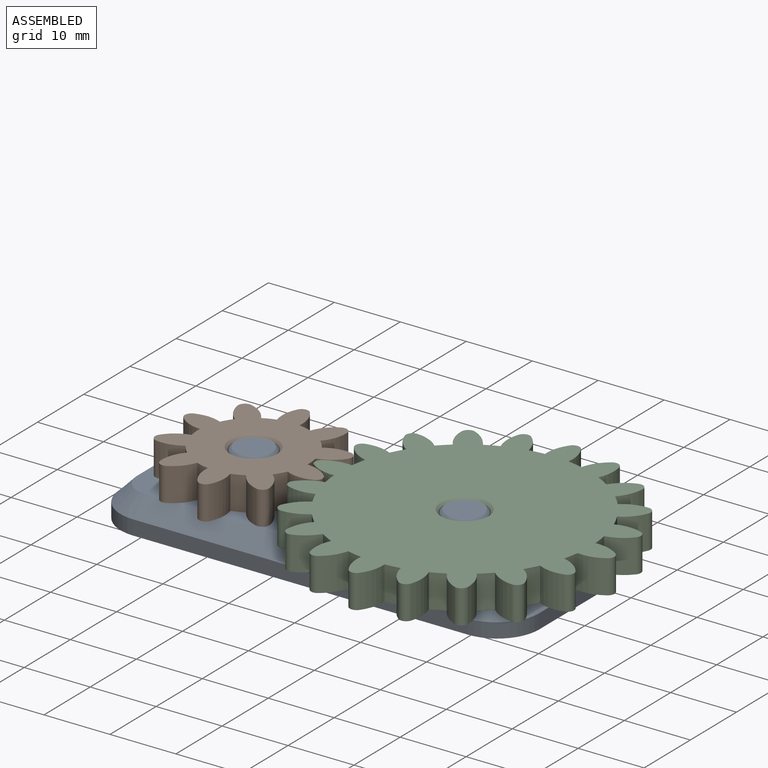
[diagram: assembled view]
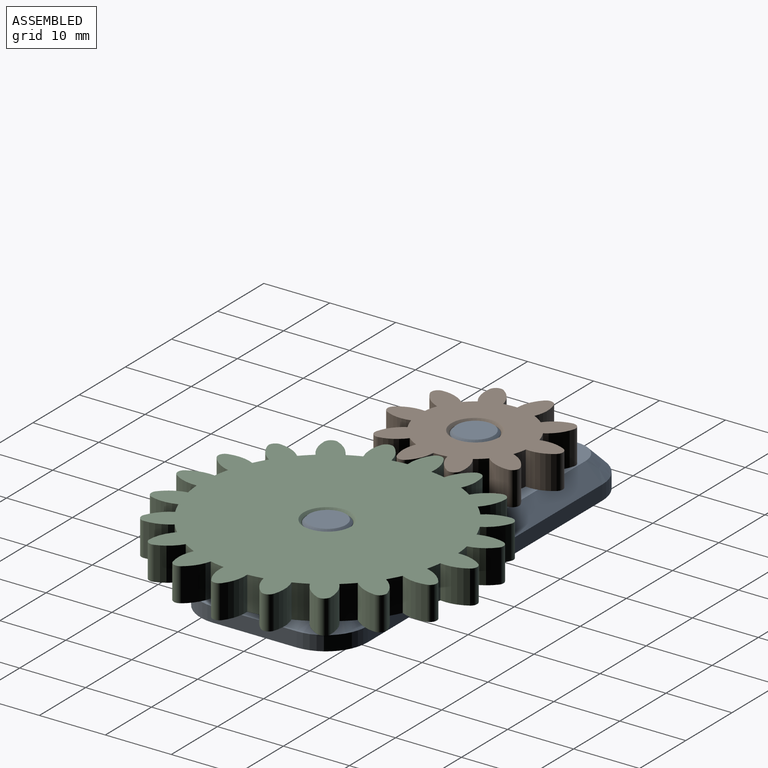
[diagram: assembled view, second angle]
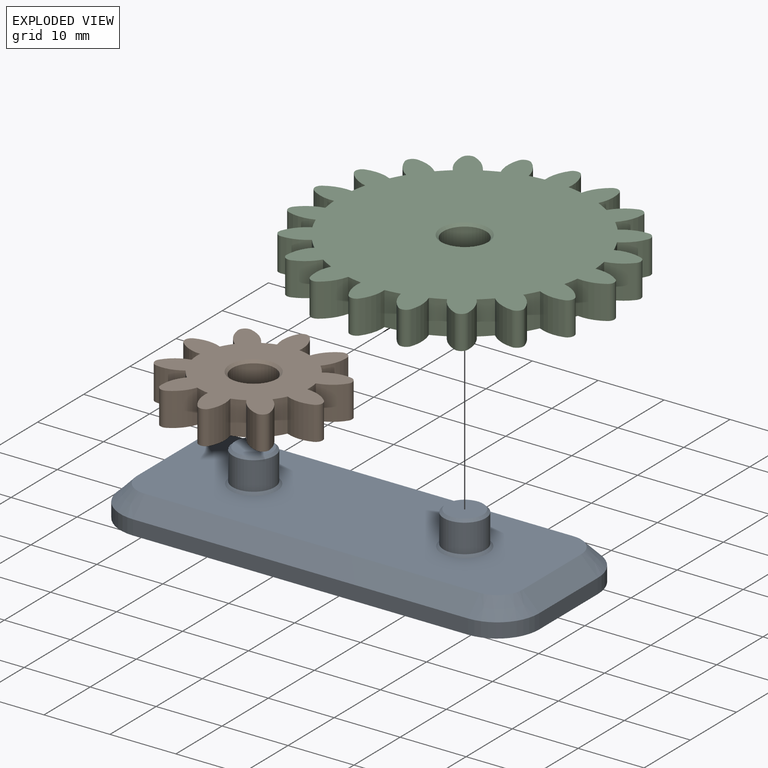
[diagram: exploded view]
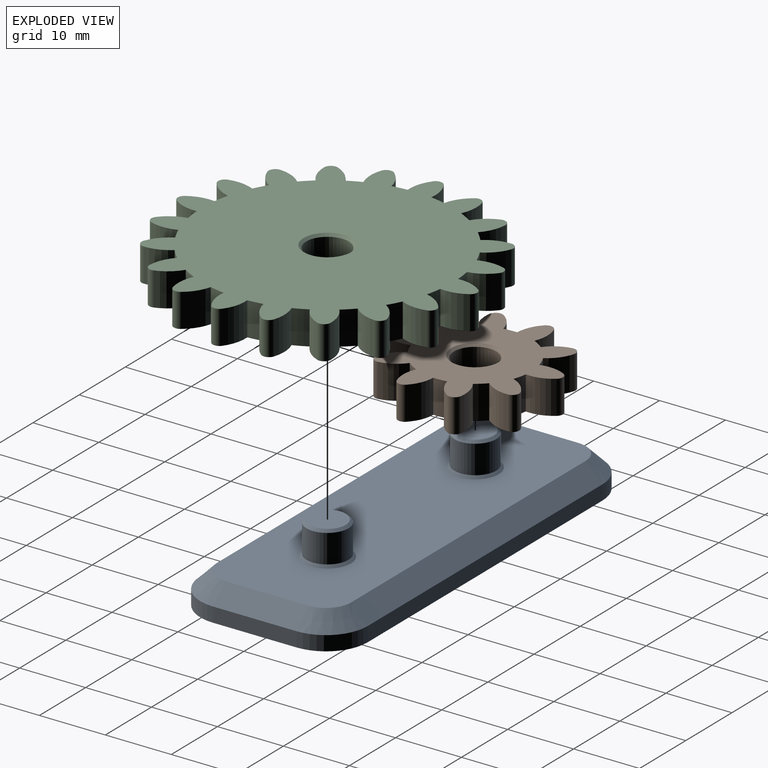
[diagram: exploded view, second angle]
ASSEMBLY  parts=3 mates=2
PART A: 43 faces, bbox 63.5x25.4x9.8 mm
  f0: plane 63.5x25.4mm, normal (0,0,-1), area 403.7mm2, adj f1,f2,f3,f4,f5,f6,f7,f8
  f1: plane 50.8x2.22mm, normal (0,1,0), area 112.9mm2, adj f0,f2,f8,f17
  f2: cylinder r=6.35mm len=6.35mm, axis (0,0,-1), area 22.2mm2, adj f0,f1,f3,f15
  f3: plane 12.7x2.22mm, normal (-1,0,0), area 28.2mm2, adj f0,f2,f4,f13
  f4: cylinder r=6.35mm len=6.35mm, axis (0,0,-1), area 22.2mm2, adj f0,f3,f5,f11
  f5: plane 50.8x2.22mm, normal (0,-1,0), area 112.9mm2, adj f0,f4,f6,f10
  f6: cylinder r=6.35mm len=6.35mm, axis (0,0,-1), area 22.2mm2, adj f0,f5,f7,f12
  f7: plane 12.7x2.22mm, normal (1,0,0), area 28.2mm2, adj f0,f6,f8,f14
  f8: cylinder r=6.35mm len=6.35mm, axis (0,0,-1), area 22.2mm2, adj f0,f1,f7,f16
  f9: plane 58.42x20.32mm, normal (0,0,1), area 1095.2mm2, adj f10,f11,f12,f13,f14,f15,f16,f17
  f10: plane 50.8x2.54mm, normal (0,-0.71,0.71), area 182.5mm2, adj f5,f9,f11,f12
  f11: cone r=3.81mm half-angle=45deg, axis (0,0,-1), area 28.7mm2, adj f4,f9,f10,f13
  f12: cone r=3.81mm half-angle=45deg, axis (0,0,-1), area 28.7mm2, adj f6,f9,f10,f14
  f13: plane 12.7x2.54mm, normal (-0.71,0,0.71), area 45.6mm2, adj f3,f9,f11,f15
  f14: plane 12.7x2.54mm, normal (0.71,0,0.71), area 45.6mm2, adj f7,f9,f12,f16
  f15: cone r=3.81mm half-angle=45deg, axis (0,0,-1), area 28.7mm2, adj f2,f9,f13,f17
  f16: cone r=3.81mm half-angle=45deg, axis (0,0,-1), area 28.7mm2, adj f8,f9,f14,f17
  f17: plane 50.8x2.54mm, normal (0,0.71,0.71), area 182.5mm2, adj f1,f9,f15,f16
  f18: plane 50.8x1.17mm, normal (0,-1,0), area 59.5mm2, adj f0,f19,f25,f34
  f19: cylinder r=3.81mm len=3.81mm, axis (0,0,-1), area 7mm2, adj f0,f18,f20,f32
  f20: plane 12.7x1.17mm, normal (1,0,0), area 14.9mm2, adj f0,f19,f21,f30
  f21: cylinder r=3.81mm len=3.81mm, axis (0,0,-1), area 7mm2, adj f0,f20,f22,f28
  f22: plane 50.8x1.17mm, normal (0,1,0), area 59.5mm2, adj f0,f21,f23,f27
  f23: cylinder r=3.81mm len=3.81mm, axis (0,0,-1), area 7mm2, adj f0,f22,f24,f29
  f24: plane 12.7x1.17mm, normal (-1,0,0), area 14.9mm2, adj f0,f23,f25,f31
  f25: cylinder r=3.81mm len=3.81mm, axis (0,0,-1), area 7mm2, adj f0,f18,f24,f33
  f26: plane 56.32x18.22mm, normal (0,0,-1), area 1019.3mm2, adj f27,f28,f29,f30,f31,f32,f33,f34
  f27: plane 50.8x1.05mm, normal (0,0.71,-0.71), area 75.6mm2, adj f22,f26,f28,f29
  f28: cone r=2.01mm half-angle=45deg, axis (0,0,-1), area 7.7mm2, adj f21,f26,f27,f30
  f29: cone r=2.01mm half-angle=45deg, axis (0,0,-1), area 7.7mm2, adj f23,f26,f27,f31
  f30: plane 12.7x1.05mm, normal (0.71,0,-0.71), area 18.9mm2, adj f20,f26,f28,f32
  f31: plane 12.7x1.05mm, normal (-0.71,0,-0.71), area 18.9mm2, adj f24,f26,f29,f33
  f32: cone r=2.01mm half-angle=45deg, axis (0,0,-1), area 7.7mm2, adj f19,f26,f30,f34
  f33: cone r=2.01mm half-angle=45deg, axis (0,0,-1), area 7.7mm2, adj f25,f26,f31,f34
  f34: plane 50.8x1.05mm, normal (0,-0.71,-0.71), area 75.6mm2, adj f18,f26,f32,f33
  f35: cylinder r=3.17mm len=6.35mm, axis (0,0,-1), area 86.1mm2, adj f39,f41
  f36: plane 5.59x5.59mm, normal (0,0,1), area 24.5mm2, adj f39
  f37: cylinder r=3.17mm len=6.35mm, axis (0,0,-1), area 86.1mm2, adj f40,f42
  f38: plane 5.59x5.59mm, normal (0,0,1), area 24.5mm2, adj f42
  f39: cone r=2.79mm half-angle=45deg, axis (0,0,-1), area 10.1mm2, adj f35,f36
  f40: cone r=3.17mm half-angle=45deg, axis (0,0,-1), area 11.4mm2, adj f9,f37
  f41: cone r=3.17mm half-angle=45deg, axis (0,0,-1), area 11.4mm2, adj f9,f35
  f42: cone r=2.79mm half-angle=45deg, axis (0,0,-1), area 10.1mm2, adj f37,f38
PART B: 45 faces, bbox 25.1x25.1x5.1 mm
  f0: cylinder r=8.47mm len=5.08mm, axis (0,0,-1), area 10.4mm2, adj f1,f6,f40,f41
  f1: cylinder r=5.29mm len=5.08mm, axis (0,0,-1), area 21.1mm2, adj f0,f3,f40,f41
  f2: cylinder r=5.29mm len=5.08mm, axis (0,0,-1), area 20.6mm2, adj f3,f36,f40,f41
  f3: cylinder r=1.04mm len=5.08mm, axis (0,0,-1), area 10.5mm2, adj f1,f2,f40,f41
  f4: cylinder r=8.47mm len=5.08mm, axis (0,0,-1), area 10.4mm2, adj f5,f10,f40,f41
  f5: cylinder r=5.29mm len=5.08mm, axis (0,0,-1), area 21.1mm2, adj f4,f7,f40,f41
  f6: cylinder r=5.29mm len=5.08mm, axis (0,0,-1), area 20.6mm2, adj f0,f7,f40,f41
  f7: cylinder r=1.04mm len=5.08mm, axis (0,0,-1), area 10.5mm2, adj f5,f6,f40,f41
  f8: cylinder r=8.47mm len=5.08mm, axis (0,0,-1), area 10.4mm2, adj f9,f14,f40,f41
  f9: cylinder r=5.29mm len=5.08mm, axis (0,0,-1), area 21.1mm2, adj f8,f11,f40,f41
  f10: cylinder r=5.29mm len=5.08mm, axis (0,0,-1), area 20.6mm2, adj f4,f11,f40,f41
  f11: cylinder r=1.04mm len=5.08mm, axis (0,0,-1), area 10.5mm2, adj f9,f10,f40,f41
  f12: cylinder r=8.47mm len=5.08mm, axis (0,0,-1), area 10.4mm2, adj f13,f18,f40,f41
  f13: cylinder r=5.29mm len=5.08mm, axis (0,0,-1), area 21.1mm2, adj f12,f15,f40,f41
  f14: cylinder r=5.29mm len=5.08mm, axis (0,0,-1), area 20.6mm2, adj f8,f15,f40,f41
  f15: cylinder r=1.04mm len=5.08mm, axis (0,0,-1), area 10.5mm2, adj f13,f14,f40,f41
  f16: cylinder r=8.47mm len=5.08mm, axis (0,0,-1), area 10.4mm2, adj f17,f22,f40,f41
  f17: cylinder r=5.29mm len=5.08mm, axis (0,0,-1), area 21.1mm2, adj f16,f19,f40,f41
  f18: cylinder r=5.29mm len=5.08mm, axis (0,0,-1), area 20.6mm2, adj f12,f19,f40,f41
  f19: cylinder r=1.04mm len=5.08mm, axis (0,0,-1), area 10.5mm2, adj f17,f18,f40,f41
  f20: cylinder r=8.47mm len=5.08mm, axis (0,0,-1), area 10.4mm2, adj f21,f26,f40,f41
  f21: cylinder r=5.29mm len=5.08mm, axis (0,0,-1), area 21.1mm2, adj f20,f23,f40,f41
  f22: cylinder r=5.29mm len=5.08mm, axis (0,0,-1), area 20.6mm2, adj f16,f23,f40,f41
  f23: cylinder r=1.04mm len=5.08mm, axis (0,0,-1), area 10.5mm2, adj f21,f22,f40,f41
  f24: cylinder r=8.47mm len=5.08mm, axis (0,0,-1), area 10.4mm2, adj f25,f30,f40,f41
  f25: cylinder r=5.29mm len=5.08mm, axis (0,0,-1), area 21.1mm2, adj f24,f27,f40,f41
  f26: cylinder r=5.29mm len=5.08mm, axis (0,0,-1), area 20.6mm2, adj f20,f27,f40,f41
  f27: cylinder r=1.04mm len=5.08mm, axis (0,0,-1), area 10.5mm2, adj f25,f26,f40,f41
  f28: cylinder r=8.47mm len=5.08mm, axis (0,0,-1), area 10.4mm2, adj f29,f34,f40,f41
  f29: cylinder r=5.29mm len=5.08mm, axis (0,0,-1), area 21.1mm2, adj f28,f31,f40,f41
  f30: cylinder r=5.29mm len=5.08mm, axis (0,0,-1), area 20.6mm2, adj f24,f31,f40,f41
  f31: cylinder r=1.04mm len=5.08mm, axis (0,0,-1), area 10.5mm2, adj f29,f30,f40,f41
  f32: cylinder r=8.47mm len=5.08mm, axis (0,0,-1), area 10.4mm2, adj f33,f37,f40,f41
  f33: cylinder r=5.29mm len=5.08mm, axis (0,0,-1), area 21.1mm2, adj f32,f35,f40,f41
  f34: cylinder r=5.29mm len=5.08mm, axis (0,0,-1), area 20.6mm2, adj f28,f35,f40,f41
  f35: cylinder r=1.04mm len=5.08mm, axis (0,0,-1), area 10.5mm2, adj f33,f34,f40,f41
  f36: cylinder r=8.47mm len=5.08mm, axis (0,0,-1), area 10.4mm2, adj f2,f39,f40,f41
  f37: cylinder r=5.29mm len=5.08mm, axis (0,0,-1), area 20.6mm2, adj f32,f38,f40,f41
  f38: cylinder r=1.04mm len=5.08mm, axis (0,0,-1), area 10.5mm2, adj f37,f39,f40,f41
  f39: cylinder r=5.29mm len=5.08mm, axis (0,0,-1), area 21.1mm2, adj f36,f38,f40,f41
  f40: plane 25.15x25.09mm, normal (0,0,1), area 305.6mm2, adj f0,f1,f2,f3,f4,f5,f6,f7
  f41: plane 25.15x25.09mm, normal (0,0,-1), area 305.6mm2, adj f0,f1,f2,f3,f4,f5,f6,f7
  f42: cylinder r=3.24mm len=6.48mm, axis (0,0,1), area 87.9mm2, adj f43,f44
  f43: cone r=3.24mm half-angle=45deg, axis (0,0,1), area 11.6mm2, adj f40,f42
  f44: cone r=3.62mm half-angle=45deg, axis (0,0,-1), area 11.6mm2, adj f41,f42
PART C: 85 faces, bbox 46.4x46.4x5.1 mm
  f0: cylinder r=1.03mm len=5.08mm, axis (0,0,-1), area 10.1mm2, adj f1,f79,f81,f82
  f1: cylinder r=5.77mm len=5.08mm, axis (0,0,-1), area 20.8mm2, adj f0,f2,f81,f82
  f2: cylinder r=19.05mm len=5.08mm, axis (0,0,-1), area 11.7mm2, adj f1,f3,f81,f82
  f3: cylinder r=5.77mm len=5.08mm, axis (0,0,-1), area 20.8mm2, adj f2,f4,f81,f82
  f4: cylinder r=1.03mm len=5.08mm, axis (0,0,-1), area 10.1mm2, adj f3,f5,f81,f82
  f5: cylinder r=5.77mm len=5.08mm, axis (0,0,-1), area 20.8mm2, adj f4,f6,f81,f82
  f6: cylinder r=19.05mm len=5.08mm, axis (0,0,-1), area 11.7mm2, adj f5,f7,f81,f82
  f7: cylinder r=5.77mm len=5.08mm, axis (0,0,-1), area 20.8mm2, adj f6,f8,f81,f82
  f8: cylinder r=1.03mm len=5.08mm, axis (0,0,-1), area 10.1mm2, adj f7,f9,f81,f82
  f9: cylinder r=5.77mm len=5.08mm, axis (0,0,-1), area 20.8mm2, adj f8,f10,f81,f82
  f10: cylinder r=19.05mm len=5.08mm, axis (0,0,-1), area 11.7mm2, adj f9,f11,f81,f82
  f11: cylinder r=5.77mm len=5.08mm, axis (0,0,-1), area 20.8mm2, adj f10,f12,f81,f82
  f12: cylinder r=1.03mm len=5.08mm, axis (0,0,-1), area 10.1mm2, adj f11,f13,f81,f82
  f13: cylinder r=5.77mm len=5.08mm, axis (0,0,-1), area 20.8mm2, adj f12,f14,f81,f82
  f14: cylinder r=19.05mm len=5.08mm, axis (0,0,-1), area 11.7mm2, adj f13,f15,f81,f82
  f15: cylinder r=5.77mm len=5.08mm, axis (0,0,-1), area 20.8mm2, adj f14,f16,f81,f82
  f16: cylinder r=1.03mm len=5.08mm, axis (0,0,-1), area 10.1mm2, adj f15,f17,f81,f82
  f17: cylinder r=5.77mm len=5.08mm, axis (0,0,-1), area 20.8mm2, adj f16,f18,f81,f82
  f18: cylinder r=19.05mm len=5.08mm, axis (0,0,-1), area 11.7mm2, adj f17,f19,f81,f82
  f19: cylinder r=5.77mm len=5.08mm, axis (0,0,-1), area 20.8mm2, adj f18,f20,f81,f82
  f20: cylinder r=1.03mm len=5.08mm, axis (0,0,-1), area 10.1mm2, adj f19,f21,f81,f82
  f21: cylinder r=5.77mm len=5.08mm, axis (0,0,-1), area 20.8mm2, adj f20,f22,f81,f82
  f22: cylinder r=19.05mm len=5.08mm, axis (0,0,-1), area 11.7mm2, adj f21,f23,f81,f82
  f23: cylinder r=5.77mm len=5.08mm, axis (0,0,-1), area 20.8mm2, adj f22,f24,f81,f82
  f24: cylinder r=1.03mm len=5.08mm, axis (0,0,-1), area 10.1mm2, adj f23,f25,f81,f82
  f25: cylinder r=5.77mm len=5.08mm, axis (0,0,-1), area 20.8mm2, adj f24,f26,f81,f82
  f26: cylinder r=19.05mm len=5.08mm, axis (0,0,-1), area 11.7mm2, adj f25,f27,f81,f82
  f27: cylinder r=5.77mm len=5.08mm, axis (0,0,-1), area 20.8mm2, adj f26,f28,f81,f82
  f28: cylinder r=1.03mm len=5.08mm, axis (0,0,-1), area 10.1mm2, adj f27,f29,f81,f82
  f29: cylinder r=5.77mm len=5.08mm, axis (0,0,-1), area 20.8mm2, adj f28,f30,f81,f82
  f30: cylinder r=19.05mm len=5.08mm, axis (0,0,-1), area 11.7mm2, adj f29,f31,f81,f82
  f31: cylinder r=5.77mm len=5.08mm, axis (0,0,-1), area 20.8mm2, adj f30,f32,f81,f82
  f32: cylinder r=1.03mm len=5.08mm, axis (0,0,-1), area 10.1mm2, adj f31,f33,f81,f82
  f33: cylinder r=5.77mm len=5.08mm, axis (0,0,-1), area 20.8mm2, adj f32,f34,f81,f82
  f34: cylinder r=19.05mm len=5.08mm, axis (0,0,-1), area 11.7mm2, adj f33,f35,f81,f82
  f35: cylinder r=5.77mm len=5.08mm, axis (0,0,-1), area 20.8mm2, adj f34,f36,f81,f82
  f36: cylinder r=1.03mm len=5.08mm, axis (0,0,-1), area 10.1mm2, adj f35,f37,f81,f82
  f37: cylinder r=5.77mm len=5.08mm, axis (0,0,-1), area 20.8mm2, adj f36,f38,f81,f82
  f38: cylinder r=19.05mm len=5.08mm, axis (0,0,-1), area 11.7mm2, adj f37,f39,f81,f82
  f39: cylinder r=5.77mm len=5.08mm, axis (0,0,-1), area 20.8mm2, adj f38,f40,f81,f82
  f40: cylinder r=1.03mm len=5.08mm, axis (0,0,-1), area 10.1mm2, adj f39,f41,f81,f82
  f41: cylinder r=5.77mm len=5.08mm, axis (0,0,-1), area 20.8mm2, adj f40,f42,f81,f82
  f42: cylinder r=19.05mm len=5.08mm, axis (0,0,-1), area 11.7mm2, adj f41,f43,f81,f82
  f43: cylinder r=5.77mm len=5.08mm, axis (0,0,-1), area 20.8mm2, adj f42,f44,f81,f82
  f44: cylinder r=1.03mm len=5.08mm, axis (0,0,-1), area 10.1mm2, adj f43,f45,f81,f82
  f45: cylinder r=5.77mm len=5.08mm, axis (0,0,-1), area 20.8mm2, adj f44,f46,f81,f82
  f46: cylinder r=19.05mm len=5.08mm, axis (0,0,-1), area 11.7mm2, adj f45,f47,f81,f82
  f47: cylinder r=5.77mm len=5.08mm, axis (0,0,-1), area 20.8mm2, adj f46,f48,f81,f82
  f48: cylinder r=1.03mm len=5.08mm, axis (0,0,-1), area 10.1mm2, adj f47,f49,f81,f82
  f49: cylinder r=5.77mm len=5.08mm, axis (0,0,-1), area 20.8mm2, adj f48,f50,f81,f82
  f50: cylinder r=19.05mm len=5.08mm, axis (0,0,-1), area 11.7mm2, adj f49,f51,f81,f82
  f51: cylinder r=5.77mm len=5.08mm, axis (0,0,-1), area 20.8mm2, adj f50,f52,f81,f82
  f52: cylinder r=1.03mm len=5.08mm, axis (0,0,-1), area 10.1mm2, adj f51,f53,f81,f82
  f53: cylinder r=5.77mm len=5.08mm, axis (0,0,-1), area 20.8mm2, adj f52,f54,f81,f82
  f54: cylinder r=19.05mm len=5.08mm, axis (0,0,-1), area 11.7mm2, adj f53,f55,f81,f82
  f55: cylinder r=5.77mm len=5.08mm, axis (0,0,-1), area 20.8mm2, adj f54,f56,f81,f82
  f56: cylinder r=1.03mm len=5.08mm, axis (0,0,-1), area 10.1mm2, adj f55,f57,f81,f82
  f57: cylinder r=5.77mm len=5.08mm, axis (0,0,-1), area 20.8mm2, adj f56,f58,f81,f82
  f58: cylinder r=19.05mm len=5.08mm, axis (0,0,-1), area 11.7mm2, adj f57,f59,f81,f82
  f59: cylinder r=5.77mm len=5.08mm, axis (0,0,-1), area 20.8mm2, adj f58,f60,f81,f82
  f60: cylinder r=1.03mm len=5.08mm, axis (0,0,-1), area 10.1mm2, adj f59,f61,f81,f82
  f61: cylinder r=5.77mm len=5.08mm, axis (0,0,-1), area 20.8mm2, adj f60,f62,f81,f82
  f62: cylinder r=19.05mm len=5.08mm, axis (0,0,-1), area 11.7mm2, adj f61,f63,f81,f82
  f63: cylinder r=5.77mm len=5.08mm, axis (0,0,-1), area 20.8mm2, adj f62,f64,f81,f82
  f64: cylinder r=1.03mm len=5.08mm, axis (0,0,-1), area 10.1mm2, adj f63,f65,f81,f82
  f65: cylinder r=5.77mm len=5.08mm, axis (0,0,-1), area 20.8mm2, adj f64,f66,f81,f82
  f66: cylinder r=19.05mm len=5.08mm, axis (0,0,-1), area 11.7mm2, adj f65,f67,f81,f82
  f67: cylinder r=5.77mm len=5.08mm, axis (0,0,-1), area 20.8mm2, adj f66,f68,f81,f82
  f68: cylinder r=1.03mm len=5.08mm, axis (0,0,-1), area 10.1mm2, adj f67,f69,f81,f82
  f69: cylinder r=5.77mm len=5.08mm, axis (0,0,-1), area 20.8mm2, adj f68,f70,f81,f82
  f70: cylinder r=19.05mm len=5.08mm, axis (0,0,-1), area 11.7mm2, adj f69,f71,f81,f82
  f71: cylinder r=5.77mm len=5.08mm, axis (0,0,-1), area 20.8mm2, adj f70,f72,f81,f82
  f72: cylinder r=1.03mm len=5.08mm, axis (0,0,-1), area 10.1mm2, adj f71,f73,f81,f82
  f73: cylinder r=5.77mm len=5.08mm, axis (0,0,-1), area 20.8mm2, adj f72,f74,f81,f82
  f74: cylinder r=19.05mm len=5.08mm, axis (0,0,-1), area 11.7mm2, adj f73,f75,f81,f82
  f75: cylinder r=5.77mm len=5.08mm, axis (0,0,-1), area 20.8mm2, adj f74,f76,f81,f82
  f76: cylinder r=1.03mm len=5.08mm, axis (0,0,-1), area 10.1mm2, adj f75,f77,f81,f82
  f77: cylinder r=5.77mm len=5.08mm, axis (0,0,-1), area 20.8mm2, adj f76,f78,f81,f82
  f78: cylinder r=19.05mm len=5.08mm, axis (0,0,-1), area 11.7mm2, adj f77,f79,f81,f82
  f79: cylinder r=5.77mm len=5.08mm, axis (0,0,-1), area 20.8mm2, adj f0,f78,f81,f82
  f80: cylinder r=3.24mm len=6.48mm, axis (0,0,-1), area 87.9mm2, adj f83,f84
  f81: plane 46.43x46.43mm, normal (0,0,1), area 1352.1mm2, adj f0,f1,f2,f3,f4,f5,f6,f7
  f82: plane 46.43x46.43mm, normal (0,0,-1), area 1352.1mm2, adj f0,f1,f2,f3,f4,f5,f6,f7
  f83: cone r=3.62mm half-angle=45deg, axis (0,0,-1), area 11.6mm2, adj f80,f82
  f84: cone r=3.24mm half-angle=45deg, axis (0,0,1), area 11.6mm2, adj f80,f81
PLACE A t=(-25.93,-12.75,-4.65)mm fixed
PLACE B rot(axis=(-0.41,0.91,0),180deg) t=(-10.18,-0.05,5.19)mm
PLACE C rot(axis=(0,0,-1),105.6deg) t=(21.82,-0.05,0.11)mm
MATE revolute C.f80 <-> A.f37  axis (0,0,-1) through (21.82,-0.05,2.65)mm
MATE revolute B.f0 <-> A.f35  axis (0,0,-1) through (-10.18,-0.05,2.65)mm
